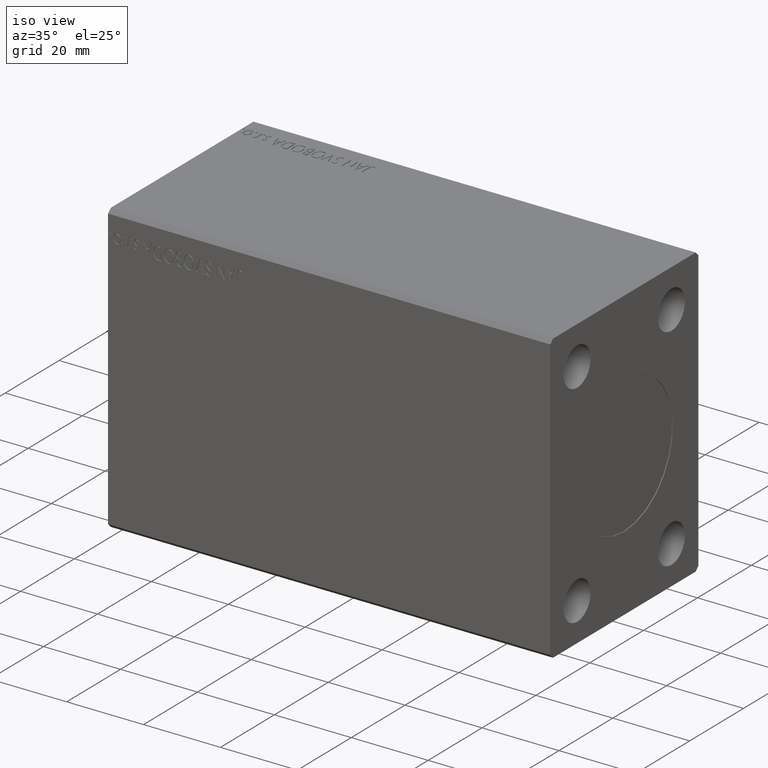
[diagram: clean part render]
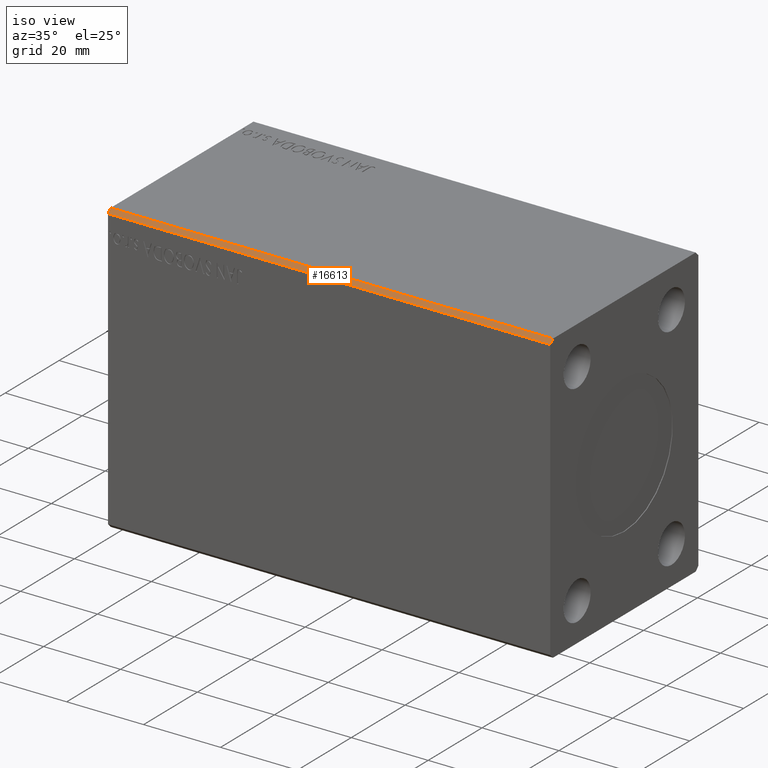
[diagram: same view with one face highlighted and labeled with its STEP entity id]
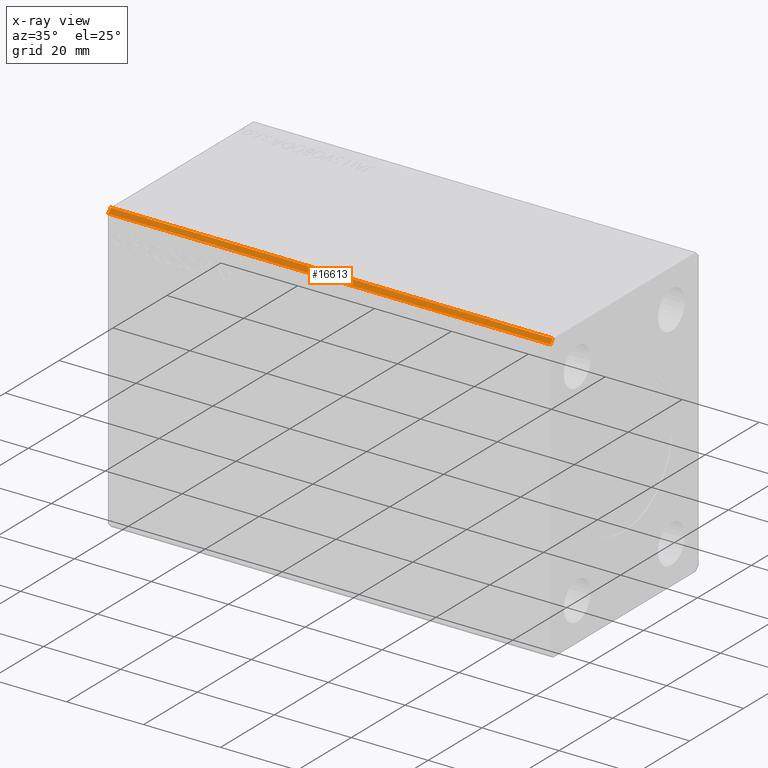
[diagram: x-ray of the same camera — body ghosted, the highlighted face saturated]
A machine part, iso view. The second image highlights one B-rep face of the part: STEP entity #16613.
The next image is the same camera in x-ray: the body ghosted, the highlighted face saturated — about 0% of this face is hidden behind the body in this view.
In plain terms, the highlighted planar face has unit normal (0, 0.7071, -0.7071).
Its self-contained STEP definition (entity closure, byte-faithful):
#2610 = VERTEX_POINT ( 'NONE', #25607 ) ;
#6028 = CARTESIAN_POINT ( 'NONE',  ( 115.0000000000000000, -26.50000000000000711, 37.50000000000000711 ) ) ;
#11324 = AXIS2_PLACEMENT_3D ( 'NONE', #17103, #43645, #40306 ) ;
#11883 = EDGE_CURVE ( 'NONE', #22171, #22286, #36373, .T. ) ;
#12971 = DIRECTION ( 'NONE',  ( -1.000000000000000000, -0.000000000000000000, -0.000000000000000000 ) ) ;
#13835 = CARTESIAN_POINT ( 'NONE',  ( 0.000000000000000000, -27.50000000000000711, 36.50000000000000711 ) ) ;
#14828 = VERTEX_POINT ( 'NONE', #18562 ) ;
#15807 = EDGE_CURVE ( 'NONE', #2610, #14828, #26137, .T. ) ;
#16530 = CARTESIAN_POINT ( 'NONE',  ( 115.0000000000000000, -27.50000000000000711, 36.50000000000000711 ) ) ;
#16613 = ADVANCED_FACE ( 'NONE', ( #30257 ), #37606, .F. ) ;
#17103 = CARTESIAN_POINT ( 'NONE',  ( 115.0000000000000000, -26.50000000000000711, 37.50000000000000711 ) ) ;
#18562 = CARTESIAN_POINT ( 'NONE',  ( 0.000000000000000000, -26.50000000000000711, 37.50000000000000711 ) ) ;
#18784 = VECTOR ( 'NONE', #12971, 1000.000000000000000 ) ;
#20545 = LINE ( 'NONE', #24335, #33636 ) ;
#22171 = VERTEX_POINT ( 'NONE', #37665 ) ;
#22286 = VERTEX_POINT ( 'NONE', #13835 ) ;
#22794 = DIRECTION ( 'NONE',  ( -1.000000000000000000, -0.000000000000000000, -0.000000000000000000 ) ) ;
#24335 = CARTESIAN_POINT ( 'NONE',  ( 115.0000000000000000, -26.50000000000000711, 37.50000000000000711 ) ) ;
#24781 = DIRECTION ( 'NONE',  ( 0.000000000000000000, -0.7071067811865474617, -0.7071067811865474617 ) ) ;
#25232 = ORIENTED_EDGE ( 'NONE', *, *, #26092, .F. ) ;
#25386 = VECTOR ( 'NONE', #22794, 1000.000000000000000 ) ;
#25607 = CARTESIAN_POINT ( 'NONE',  ( 115.0000000000000000, -26.50000000000000711, 37.50000000000000711 ) ) ;
#26092 = EDGE_CURVE ( 'NONE', #2610, #22171, #20545, .T. ) ;
#26137 = LINE ( 'NONE', #6028, #25386 ) ;
#27235 = DIRECTION ( 'NONE',  ( 0.000000000000000000, -0.7071067811865474617, -0.7071067811865474617 ) ) ;
#27537 = ORIENTED_EDGE ( 'NONE', *, *, #15807, .T. ) ;
#29873 = EDGE_CURVE ( 'NONE', #14828, #22286, #30788, .T. ) ;
#30257 = FACE_OUTER_BOUND ( 'NONE', #40213, .T. ) ;
#30788 = LINE ( 'NONE', #37708, #38648 ) ;
#33636 = VECTOR ( 'NONE', #27235, 1000.000000000000114 ) ;
#36262 = ORIENTED_EDGE ( 'NONE', *, *, #11883, .F. ) ;
#36373 = LINE ( 'NONE', #16530, #18784 ) ;
#37606 = PLANE ( 'NONE',  #11324 ) ;
#37665 = CARTESIAN_POINT ( 'NONE',  ( 115.0000000000000000, -27.50000000000000711, 36.50000000000000711 ) ) ;
#37708 = CARTESIAN_POINT ( 'NONE',  ( 0.000000000000000000, -26.50000000000000711, 37.50000000000000711 ) ) ;
#38648 = VECTOR ( 'NONE', #24781, 1000.000000000000114 ) ;
#40213 = EDGE_LOOP ( 'NONE', ( #43933, #36262, #25232, #27537 ) ) ;
#40306 = DIRECTION ( 'NONE',  ( 0.000000000000000000, 0.7071067811865474617, 0.7071067811865474617 ) ) ;
#43645 = DIRECTION ( 'NONE',  ( 0.000000000000000000, 0.7071067811865475727, -0.7071067811865475727 ) ) ;
#43933 = ORIENTED_EDGE ( 'NONE', *, *, #29873, .T. ) ;